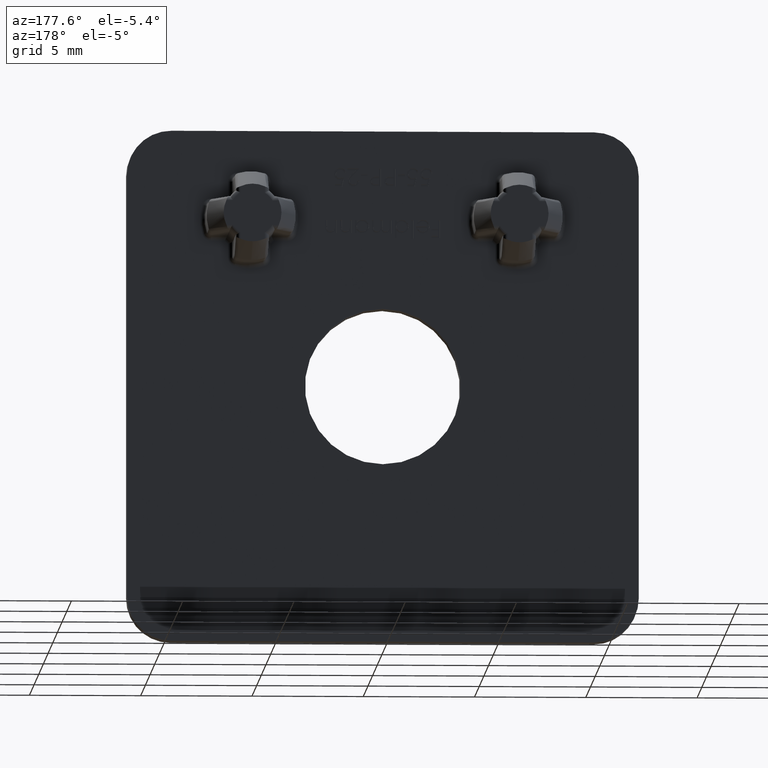
[diagram: clean part render]
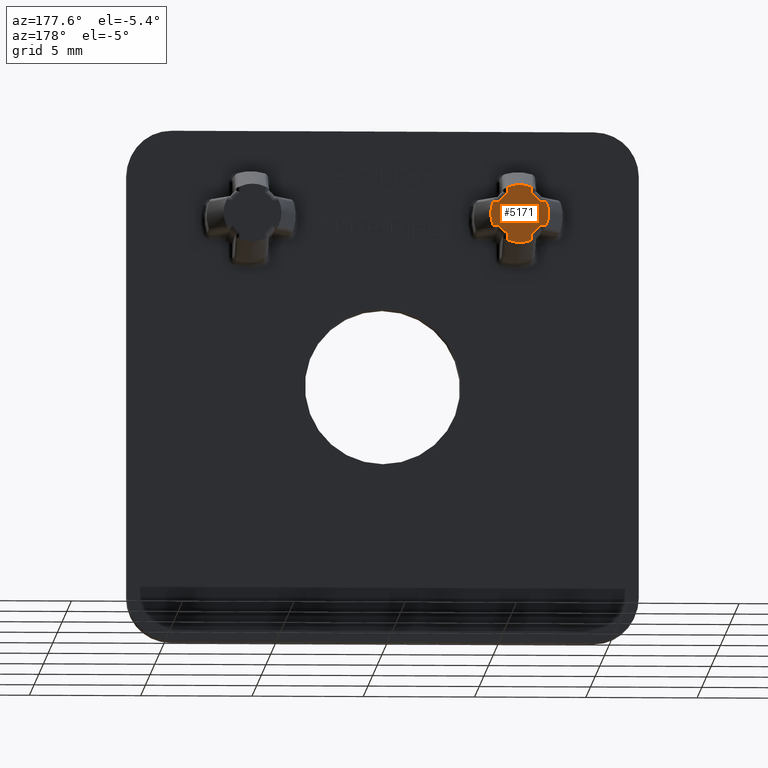
[diagram: same view with one face highlighted and labeled with its STEP entity id]
A machine part, auxiliary view. The second image highlights one B-rep face of the part: STEP entity #5171.
In plain terms, the highlighted planar face has unit normal (0, -1, 0).
Its self-contained STEP definition (entity closure, byte-faithful):
#23 = LINE ( 'NONE', #12036, #13249 ) ;
#60 = CARTESIAN_POINT ( 'NONE',  ( -4.822078101061023000, 4.500000000000000900, 6.950000000000000200 ) ) ;
#332 = AXIS2_PLACEMENT_3D ( 'NONE', #6899, #9366, #15814 ) ;
#357 = DIRECTION ( 'NONE',  ( 1.000000000000000000, 0.0000000000000000000, 0.0000000000000000000 ) ) ;
#496 = ORIENTED_EDGE ( 'NONE', *, *, #8075, .T. ) ;
#542 = AXIS2_PLACEMENT_3D ( 'NONE', #2664, #11651, #14092 ) ;
#646 = VERTEX_POINT ( 'NONE', #5071 ) ;
#661 = DIRECTION ( 'NONE',  ( -2.668805347656626100E-015, 0.0000000000000000000, -1.000000000000000000 ) ) ;
#733 = ORIENTED_EDGE ( 'NONE', *, *, #4098, .T. ) ;
#808 = EDGE_CURVE ( 'NONE', #13365, #8198, #4414, .T. ) ;
#891 = CARTESIAN_POINT ( 'NONE',  ( -7.177921898938971700, 4.500000000000000900, 6.949999999999998400 ) ) ;
#951 = CARTESIAN_POINT ( 'NONE',  ( -7.177921898938972600, 4.500000000000000900, 8.050000000000000700 ) ) ;
#980 = CARTESIAN_POINT ( 'NONE',  ( -5.450000000001521600, 4.500000000000000900, 8.394427191000849200 ) ) ;
#1072 = AXIS2_PLACEMENT_3D ( 'NONE', #16124, #10938, #12220 ) ;
#1108 = EDGE_CURVE ( 'NONE', #2174, #3541, #1560, .T. ) ;
#1533 = VECTOR ( 'NONE', #357, 1000.000000000000000 ) ;
#1560 = CIRCLE ( 'NONE', #332, 1.050000000000000500 ) ;
#1702 = ORIENTED_EDGE ( 'NONE', *, *, #1108, .T. ) ;
#1755 = EDGE_CURVE ( 'NONE', #8762, #7286, #9203, .T. ) ;
#1817 = ORIENTED_EDGE ( 'NONE', *, *, #6603, .T. ) ;
#1826 = EDGE_CURVE ( 'NONE', #8198, #646, #15187, .T. ) ;
#1953 = DIRECTION ( 'NONE',  ( 0.0000000000000000000, 0.0000000000000000000, -1.000000000000000000 ) ) ;
#2174 = VERTEX_POINT ( 'NONE', #12852 ) ;
#2302 = CARTESIAN_POINT ( 'NONE',  ( -5.450000000000002800, 4.500000000000000900, 6.605572808999149000 ) ) ;
#2345 = DIRECTION ( 'NONE',  ( 6.263226980648720300E-016, -0.0000000000000000000, -1.000000000000000000 ) ) ;
#2457 = EDGE_CURVE ( 'NONE', #4101, #12778, #15558, .T. ) ;
#2471 = DIRECTION ( 'NONE',  ( -1.000000000000000000, -0.0000000000000000000, -0.0000000000000000000 ) ) ;
#2502 = VERTEX_POINT ( 'NONE', #951 ) ;
#2597 = EDGE_CURVE ( 'NONE', #11276, #16079, #9400, .T. ) ;
#2664 = CARTESIAN_POINT ( 'NONE',  ( -5.999999999999997300, 4.500000000000000900, 7.500000000000000900 ) ) ;
#2696 = EDGE_LOOP ( 'NONE', ( #11742, #1817, #12577, #13804, #14040, #16540, #496, #4891, #16278, #15479, #4043, #9934, #2738, #733, #4526, #1702, #15083 ) ) ;
#2738 = ORIENTED_EDGE ( 'NONE', *, *, #1826, .T. ) ;
#3057 = CIRCLE ( 'NONE', #3076, 1.300000000000000000 ) ;
#3058 = CARTESIAN_POINT ( 'NONE',  ( -5.999999999999997300, 4.500000000000000900, 6.949999999999998400 ) ) ;
#3076 = AXIS2_PLACEMENT_3D ( 'NONE', #3138, #15822, #661 ) ;
#3138 = CARTESIAN_POINT ( 'NONE',  ( -5.999999999999997300, 4.500000000000000900, 7.500000000000000900 ) ) ;
#3281 = EDGE_CURVE ( 'NONE', #3541, #15063, #7386, .T. ) ;
#3323 = DIRECTION ( 'NONE',  ( 0.0000000000000000000, -0.0000000000000000000, -1.000000000000000000 ) ) ;
#3496 = DIRECTION ( 'NONE',  ( 0.0000000000000000000, 1.000000000000000000, -0.0000000000000000000 ) ) ;
#3512 = LINE ( 'NONE', #8828, #5519 ) ;
#3541 = VERTEX_POINT ( 'NONE', #3747 ) ;
#3601 = DIRECTION ( 'NONE',  ( 0.0000000000000000000, 1.000000000000000000, -0.0000000000000000000 ) ) ;
#3609 = CARTESIAN_POINT ( 'NONE',  ( -6.000000000000002700, 4.500000000000000900, 7.500000000000000000 ) ) ;
#3697 = AXIS2_PLACEMENT_3D ( 'NONE', #8392, #12188, #1953 ) ;
#3720 = CIRCLE ( 'NONE', #4888, 1.050000000000000500 ) ;
#3747 = CARTESIAN_POINT ( 'NONE',  ( -6.894427191000853700, 4.500000000000000900, 6.949999999999998400 ) ) ;
#4043 = ORIENTED_EDGE ( 'NONE', *, *, #11610, .T. ) ;
#4096 = EDGE_CURVE ( 'NONE', #10049, #8762, #3720, .T. ) ;
#4098 = EDGE_CURVE ( 'NONE', #646, #16538, #4121, .T. ) ;
#4101 = VERTEX_POINT ( 'NONE', #10890 ) ;
#4121 = CIRCLE ( 'NONE', #3697, 1.300000000000000000 ) ;
#4190 = CIRCLE ( 'NONE', #6000, 1.300000000000000000 ) ;
#4414 = LINE ( 'NONE', #11405, #12829 ) ;
#4488 = AXIS2_PLACEMENT_3D ( 'NONE', #14949, #4615, #3323 ) ;
#4526 = ORIENTED_EDGE ( 'NONE', *, *, #12923, .T. ) ;
#4615 = DIRECTION ( 'NONE',  ( 0.0000000000000000000, -1.000000000000000000, 0.0000000000000000000 ) ) ;
#4797 = DIRECTION ( 'NONE',  ( 4.130293990420967300E-015, 0.0000000000000000000, -1.000000000000000000 ) ) ;
#4888 = AXIS2_PLACEMENT_3D ( 'NONE', #10784, #9614, #7154 ) ;
#4891 = ORIENTED_EDGE ( 'NONE', *, *, #2597, .T. ) ;
#5071 = CARTESIAN_POINT ( 'NONE',  ( -5.999999999999997300, 4.500000000000000900, 6.200000000000001100 ) ) ;
#5171 = ADVANCED_FACE ( 'NONE', ( #9290 ), #9941, .F. ) ;
#5519 = VECTOR ( 'NONE', #2471, 1000.000000000000000 ) ;
#6000 = AXIS2_PLACEMENT_3D ( 'NONE', #6595, #13171, #9273 ) ;
#6192 = EDGE_CURVE ( 'NONE', #16079, #16428, #3057, .T. ) ;
#6569 = CARTESIAN_POINT ( 'NONE',  ( -5.999999999999997300, 4.500000000000000900, 8.050000000000000700 ) ) ;
#6595 = CARTESIAN_POINT ( 'NONE',  ( -5.999999999999997300, 4.500000000000000900, 7.500000000000000900 ) ) ;
#6603 = EDGE_CURVE ( 'NONE', #2502, #10049, #23, .T. ) ;
#6628 = CARTESIAN_POINT ( 'NONE',  ( -6.550000000000002500, 4.500000000000000900, 8.394427191000851000 ) ) ;
#6844 = CIRCLE ( 'NONE', #14274, 1.050000000000000500 ) ;
#6899 = CARTESIAN_POINT ( 'NONE',  ( -6.000000000000002700, 4.500000000000000900, 7.500000000000000000 ) ) ;
#6926 = LINE ( 'NONE', #12914, #13126 ) ;
#7154 = DIRECTION ( 'NONE',  ( -4.130293990420967300E-015, 0.0000000000000000000, -1.000000000000000000 ) ) ;
#7286 = VERTEX_POINT ( 'NONE', #11448 ) ;
#7386 = LINE ( 'NONE', #3058, #7786 ) ;
#7554 = CARTESIAN_POINT ( 'NONE',  ( -5.105572808999151700, 4.500000000000000900, 8.050000000000000700 ) ) ;
#7786 = VECTOR ( 'NONE', #14742, 1000.000000000000000 ) ;
#8073 = CIRCLE ( 'NONE', #16017, 1.050000000000000500 ) ;
#8075 = EDGE_CURVE ( 'NONE', #12778, #11276, #6844, .T. ) ;
#8079 = EDGE_CURVE ( 'NONE', #7286, #4101, #15823, .T. ) ;
#8093 = DIRECTION ( 'NONE',  ( 0.0000000000000000000, 0.0000000000000000000, 1.000000000000000000 ) ) ;
#8198 = VERTEX_POINT ( 'NONE', #12776 ) ;
#8208 = VECTOR ( 'NONE', #2345, 1000.000000000000000 ) ;
#8392 = CARTESIAN_POINT ( 'NONE',  ( -5.999999999999997300, 4.500000000000000900, 7.500000000000000900 ) ) ;
#8655 = CARTESIAN_POINT ( 'NONE',  ( -5.450000000000002000, 4.500000000000000900, 8.500000000000000000 ) ) ;
#8729 = EDGE_CURVE ( 'NONE', #16428, #16501, #3512, .T. ) ;
#8762 = VERTEX_POINT ( 'NONE', #6628 ) ;
#8814 = VECTOR ( 'NONE', #8093, 1000.000000000000000 ) ;
#8828 = CARTESIAN_POINT ( 'NONE',  ( -5.000000000000003600, 4.500000000000000900, 6.950000000000000200 ) ) ;
#9203 = LINE ( 'NONE', #9428, #8814 ) ;
#9273 = DIRECTION ( 'NONE',  ( 6.672013369141565200E-016, 0.0000000000000000000, -1.000000000000000000 ) ) ;
#9290 = FACE_OUTER_BOUND ( 'NONE', #2696, .T. ) ;
#9366 = DIRECTION ( 'NONE',  ( 0.0000000000000000000, 1.000000000000000000, -0.0000000000000000000 ) ) ;
#9400 = LINE ( 'NONE', #6569, #1533 ) ;
#9428 = CARTESIAN_POINT ( 'NONE',  ( -6.550000000000002500, 4.500000000000000900, 7.500000000000000900 ) ) ;
#9614 = DIRECTION ( 'NONE',  ( 0.0000000000000000000, 1.000000000000000000, -0.0000000000000000000 ) ) ;
#9934 = ORIENTED_EDGE ( 'NONE', *, *, #808, .T. ) ;
#9941 = PLANE ( 'NONE',  #4488 ) ;
#9981 = CARTESIAN_POINT ( 'NONE',  ( -6.000000000000002700, 4.500000000000000900, 7.500000000000000000 ) ) ;
#10049 = VERTEX_POINT ( 'NONE', #11196 ) ;
#10784 = CARTESIAN_POINT ( 'NONE',  ( -6.000000000000002700, 4.500000000000000900, 7.500000000000000000 ) ) ;
#10890 = CARTESIAN_POINT ( 'NONE',  ( -5.450000000000002000, 4.500000000000000900, 8.677921898938981500 ) ) ;
#10938 = DIRECTION ( 'NONE',  ( 0.0000000000000000000, 1.000000000000000000, -0.0000000000000000000 ) ) ;
#11196 = CARTESIAN_POINT ( 'NONE',  ( -6.894427191000853700, 4.500000000000000900, 8.049999999998480100 ) ) ;
#11276 = VERTEX_POINT ( 'NONE', #7554 ) ;
#11405 = CARTESIAN_POINT ( 'NONE',  ( -5.450000000000002800, 4.500000000000000900, 7.500000000000000900 ) ) ;
#11448 = CARTESIAN_POINT ( 'NONE',  ( -6.550000000000002500, 4.500000000000000900, 8.677921898938977900 ) ) ;
#11610 = EDGE_CURVE ( 'NONE', #16501, #13365, #8073, .T. ) ;
#11651 = DIRECTION ( 'NONE',  ( 0.0000000000000000000, 1.000000000000000000, -0.0000000000000000000 ) ) ;
#11742 = ORIENTED_EDGE ( 'NONE', *, *, #15374, .T. ) ;
#11753 = CARTESIAN_POINT ( 'NONE',  ( -4.822078101061023000, 4.500000000000000900, 8.050000000000000700 ) ) ;
#12036 = CARTESIAN_POINT ( 'NONE',  ( -7.000000000000002700, 4.500000000000000900, 8.050000000000000700 ) ) ;
#12188 = DIRECTION ( 'NONE',  ( 0.0000000000000000000, 1.000000000000000000, -0.0000000000000000000 ) ) ;
#12220 = DIRECTION ( 'NONE',  ( 5.337610695313252200E-015, 0.0000000000000000000, -1.000000000000000000 ) ) ;
#12564 = DIRECTION ( 'NONE',  ( 3.304235192336773900E-015, 0.0000000000000000000, -1.000000000000000000 ) ) ;
#12577 = ORIENTED_EDGE ( 'NONE', *, *, #4096, .T. ) ;
#12776 = CARTESIAN_POINT ( 'NONE',  ( -5.450000000000002800, 4.500000000000000900, 6.322078101061023000 ) ) ;
#12778 = VERTEX_POINT ( 'NONE', #980 ) ;
#12782 = DIRECTION ( 'NONE',  ( 0.0000000000000000000, 0.0000000000000000000, -1.000000000000000000 ) ) ;
#12829 = VECTOR ( 'NONE', #12782, 1000.000000000000000 ) ;
#12852 = CARTESIAN_POINT ( 'NONE',  ( -6.549999999998484600, 4.500000000000000900, 6.605572808999149000 ) ) ;
#12856 = DIRECTION ( 'NONE',  ( -6.263226980648720300E-016, -0.0000000000000000000, 1.000000000000000000 ) ) ;
#12914 = CARTESIAN_POINT ( 'NONE',  ( -6.550000000000004300, 4.500000000000000900, 6.499999999999999100 ) ) ;
#12923 = EDGE_CURVE ( 'NONE', #16538, #2174, #6926, .T. ) ;
#13126 = VECTOR ( 'NONE', #12856, 1000.000000000000000 ) ;
#13171 = DIRECTION ( 'NONE',  ( 0.0000000000000000000, 1.000000000000000000, -0.0000000000000000000 ) ) ;
#13249 = VECTOR ( 'NONE', #15753, 1000.000000000000000 ) ;
#13365 = VERTEX_POINT ( 'NONE', #2302 ) ;
#13804 = ORIENTED_EDGE ( 'NONE', *, *, #1755, .T. ) ;
#14040 = ORIENTED_EDGE ( 'NONE', *, *, #8079, .T. ) ;
#14092 = DIRECTION ( 'NONE',  ( 2.001604010742461800E-015, 0.0000000000000000000, -1.000000000000000000 ) ) ;
#14274 = AXIS2_PLACEMENT_3D ( 'NONE', #9981, #3601, #12564 ) ;
#14742 = DIRECTION ( 'NONE',  ( -1.000000000000000000, 0.0000000000000000000, 0.0000000000000000000 ) ) ;
#14949 = CARTESIAN_POINT ( 'NONE',  ( -5.999999999999997300, 4.500000000000000900, 7.500000000000000900 ) ) ;
#15063 = VERTEX_POINT ( 'NONE', #891 ) ;
#15083 = ORIENTED_EDGE ( 'NONE', *, *, #3281, .T. ) ;
#15187 = CIRCLE ( 'NONE', #1072, 1.300000000000000000 ) ;
#15374 = EDGE_CURVE ( 'NONE', #15063, #2502, #4190, .T. ) ;
#15479 = ORIENTED_EDGE ( 'NONE', *, *, #8729, .T. ) ;
#15558 = LINE ( 'NONE', #8655, #8208 ) ;
#15753 = DIRECTION ( 'NONE',  ( 1.000000000000000000, -0.0000000000000000000, -0.0000000000000000000 ) ) ;
#15814 = DIRECTION ( 'NONE',  ( 0.0000000000000000000, 0.0000000000000000000, -1.000000000000000000 ) ) ;
#15822 = DIRECTION ( 'NONE',  ( 0.0000000000000000000, 1.000000000000000000, -0.0000000000000000000 ) ) ;
#15823 = CIRCLE ( 'NONE', #542, 1.300000000000005200 ) ;
#16017 = AXIS2_PLACEMENT_3D ( 'NONE', #3609, #3496, #4797 ) ;
#16079 = VERTEX_POINT ( 'NONE', #11753 ) ;
#16124 = CARTESIAN_POINT ( 'NONE',  ( -5.999999999999997300, 4.500000000000000900, 7.500000000000000900 ) ) ;
#16278 = ORIENTED_EDGE ( 'NONE', *, *, #6192, .T. ) ;
#16347 = CARTESIAN_POINT ( 'NONE',  ( -6.550000000000004300, 4.500000000000000900, 6.322078101061029200 ) ) ;
#16428 = VERTEX_POINT ( 'NONE', #60 ) ;
#16451 = CARTESIAN_POINT ( 'NONE',  ( -5.105572808999150800, 4.500000000000000900, 6.950000000001519900 ) ) ;
#16501 = VERTEX_POINT ( 'NONE', #16451 ) ;
#16538 = VERTEX_POINT ( 'NONE', #16347 ) ;
#16540 = ORIENTED_EDGE ( 'NONE', *, *, #2457, .T. ) ;